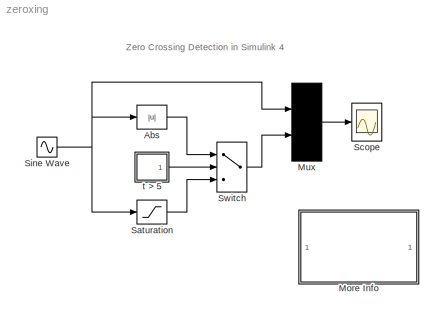
MODEL zeroxing
KIND model
BLOCK [Abs] Abs
BLOCK [SubSystem] More Info
  MaskDisplay = disp('Double click\\nhere for\\ninformation on\\nthis demonstration')
  MaskIconFrame = on
  MaskIconOpaque = on
  MaskIconRotate = none
  MaskIconUnits = autoscale
  MinAlgLoopOccurrences = off
  Ports = []
  PropExecContextAcrossSSBoundary = on
  RTWSystemCode = Auto
  TreatAsAtomicUnit = off
BLOCK [Mux] Mux
  Inputs = 2
  Ports = [2, 1]
BLOCK [Saturate] Saturation
  LowerLimit = [-0.5 -.55 -.6]
  UpperLimit = [0.5 .55 .6]
BLOCK [Scope] Scope
  DataFormat = Array
  NumInputPorts = 1
  Ports = [1]
  TickLabels = on
  YMax = 1
  YMin = -1
BLOCK [Sin] Sine Wave
  Phase = [.1 .2 .3]
  Ports = [0, 1]
  SampleTime = 0
  SineType = Time based
BLOCK [Switch] Switch
  Threshold = 0.5
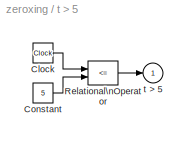
BLOCK [SubSystem] t > 5
  MinAlgLoopOccurrences = off
  Ports = [0, 1]
  PropExecContextAcrossSSBoundary = on
  RTWSystemCode = Auto
  TreatAsAtomicUnit = off
BLOCK [Clock] t > 5/Clock
  Decimation = 10
BLOCK [Constant] t > 5/Constant
  Value = 5
BLOCK [RelationalOperator] t > 5/Relational\nOperator
  Operator = <=
BLOCK [Outport] t > 5/t > 5
  IconDisplay = Port number
  InitialOutput = 0
ANNOTATION (root): Zero Crossing Detection in Simulink 4
ANNOTATION More Info: This demonstration shows how zero crossings work in Simulink. In this model, \nthree shifted sine waves are fed into an absolute value block and saturation block.\nAt exactly t = 5, the output of the switch block changes from the absolute value \nto the saturation block. Zero crossings in Simulink will automatically detect exactly\nwhen the switch block changes its output, and the solver will step...<+104ch>
ANNOTATION More Info: Zero Crossing Demonstration
LINE Abs:1 -> Switch:1
LINE Mux:1 -> Scope:1
LINE Saturation:1 -> Switch:3
NET Sine Wave:1 -> Abs:1, Mux:1, Saturation:1
LINE Switch:1 -> Mux:2
LINE t > 5/Clock:1 -> t > 5/Relational\nOperator:1
LINE t > 5/Constant:1 -> t > 5/Relational\nOperator:2
LINE t > 5/Relational\nOperator:1 -> t > 5/t > 5:1
LINE t > 5:1 -> Switch:2
note: NET lines group one-source signal fan-out (src -> all destinations, sorted); 1:1 wires keep LINE
